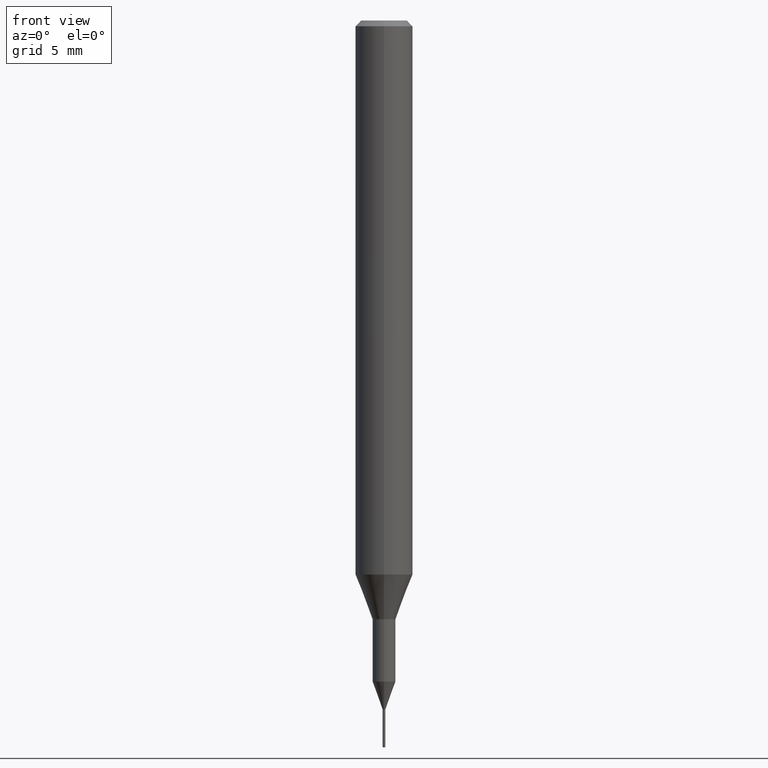
[diagram: clean part render]
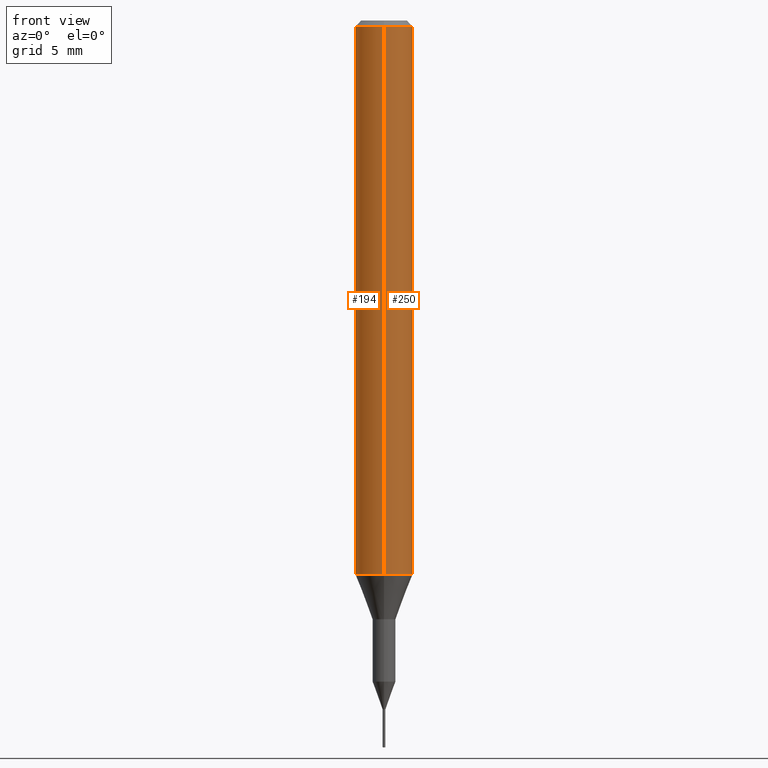
[diagram: same view with one multi-face feature highlighted, each face labeled with its STEP entity id]
A machine part, front view. The highlighted faces form ONE feature: a constant-radius fillet chain: 2 tangent blend faces with common blend radius 1.5 mm. The faces share edges in the B-rep.
Their STEP definitions:
[1] entity #250 (Cylinder):
#124=EDGE_CURVE('',#180,#184,#303,.T.);
#172=EDGE_CURVE('',#192,#180,#357,.T.);
#180=VERTEX_POINT('',#365);
#182=VERTEX_POINT('',#367);
#184=VERTEX_POINT('',#369);
#192=VERTEX_POINT('',#379);
#234=EDGE_CURVE('',#184,#182,#427,.T.);
#236=EDGE_CURVE('',#192,#182,#429,.T.);
#250=ADVANCED_FACE('',(#445),#446,.T.);
#303=CIRCLE('',#498,1.5);
#357=LINE('',#568,#569);
#365=CARTESIAN_POINT('',(0.0,1.5,-28.955));
#367=CARTESIAN_POINT('',(1.83690953073357E-016,-1.5,-0.300000000000001));
#369=CARTESIAN_POINT('',(1.83690953073357E-016,-1.5,-28.955));
#379=CARTESIAN_POINT('',(0.0,1.5,-0.300000000000001));
#427=LINE('',#655,#656);
#429=CIRCLE('',#659,1.5);
#445=FACE_OUTER_BOUND('',#677,.T.);
#446=CYLINDRICAL_SURFACE('',#678,1.5);
#498=AXIS2_PLACEMENT_3D('',#731,#732,#733);
#568=CARTESIAN_POINT('',(-1.83690953073357E-016,1.5,-14.6275));
#569=VECTOR('',#791,1.0);
#655=CARTESIAN_POINT('',(1.83690953073357E-016,-1.5,-14.6275));
#656=VECTOR('',#880,1.0);
#659=AXIS2_PLACEMENT_3D('',#881,#882,#883);
#677=EDGE_LOOP('',(#901,#902,#903,#904));
#678=AXIS2_PLACEMENT_3D('',#905,#906,#907);
#731=CARTESIAN_POINT('',(0.0,0.0,-28.955));
#732=DIRECTION('',(0.0,0.0,-1.0));
#733=DIRECTION('',(0.0,1.0,0.0));
#791=DIRECTION('',(0.0,0.0,-1.0));
#880=DIRECTION('',(-0.0,-0.0,1.0));
#881=CARTESIAN_POINT('',(0.0,0.0,-0.300000000000001));
#882=DIRECTION('',(0.0,0.0,-1.0));
#883=DIRECTION('',(0.0,1.0,0.0));
#901=ORIENTED_EDGE('',*,*,#172,.F.);
#902=ORIENTED_EDGE('',*,*,#236,.T.);
#903=ORIENTED_EDGE('',*,*,#234,.F.);
#904=ORIENTED_EDGE('',*,*,#124,.F.);
#905=CARTESIAN_POINT('',(0.0,0.0,-14.6275));
#906=DIRECTION('',(-0.0,-0.0,1.0));
#907=DIRECTION('',(0.0,1.0,0.0));
[2] entity #194 (Cylinder):
#146=EDGE_CURVE('',#182,#192,#327,.T.);
#172=EDGE_CURVE('',#192,#180,#357,.T.);
#180=VERTEX_POINT('',#365);
#182=VERTEX_POINT('',#367);
#184=VERTEX_POINT('',#369);
#192=VERTEX_POINT('',#379);
#194=ADVANCED_FACE('',(#381),#382,.T.);
#216=EDGE_CURVE('',#184,#180,#409,.T.);
#234=EDGE_CURVE('',#184,#182,#427,.T.);
#327=CIRCLE('',#529,1.5);
#357=LINE('',#568,#569);
#365=CARTESIAN_POINT('',(0.0,1.5,-28.955));
#367=CARTESIAN_POINT('',(1.83690953073357E-016,-1.5,-0.300000000000001));
#369=CARTESIAN_POINT('',(1.83690953073357E-016,-1.5,-28.955));
#379=CARTESIAN_POINT('',(0.0,1.5,-0.300000000000001));
#381=FACE_OUTER_BOUND('',#597,.T.);
#382=CYLINDRICAL_SURFACE('',#598,1.5);
#409=CIRCLE('',#630,1.5);
#427=LINE('',#655,#656);
#529=AXIS2_PLACEMENT_3D('',#758,#759,#760);
#568=CARTESIAN_POINT('',(-1.83690953073357E-016,1.5,-14.6275));
#569=VECTOR('',#791,1.0);
#597=EDGE_LOOP('',(#814,#815,#816,#817));
#598=AXIS2_PLACEMENT_3D('',#818,#819,#820);
#630=AXIS2_PLACEMENT_3D('',#864,#865,#866);
#655=CARTESIAN_POINT('',(1.83690953073357E-016,-1.5,-14.6275));
#656=VECTOR('',#880,1.0);
#758=CARTESIAN_POINT('',(0.0,0.0,-0.300000000000001));
#759=DIRECTION('',(0.0,0.0,-1.0));
#760=DIRECTION('',(0.0,1.0,0.0));
#791=DIRECTION('',(0.0,0.0,-1.0));
#814=ORIENTED_EDGE('',*,*,#172,.T.);
#815=ORIENTED_EDGE('',*,*,#216,.F.);
#816=ORIENTED_EDGE('',*,*,#234,.T.);
#817=ORIENTED_EDGE('',*,*,#146,.T.);
#818=CARTESIAN_POINT('',(0.0,0.0,-14.6275));
#819=DIRECTION('',(-0.0,-0.0,1.0));
#820=DIRECTION('',(0.0,1.0,0.0));
#864=CARTESIAN_POINT('',(0.0,0.0,-28.955));
#865=DIRECTION('',(0.0,0.0,-1.0));
#866=DIRECTION('',(0.0,1.0,0.0));
#880=DIRECTION('',(-0.0,-0.0,1.0));